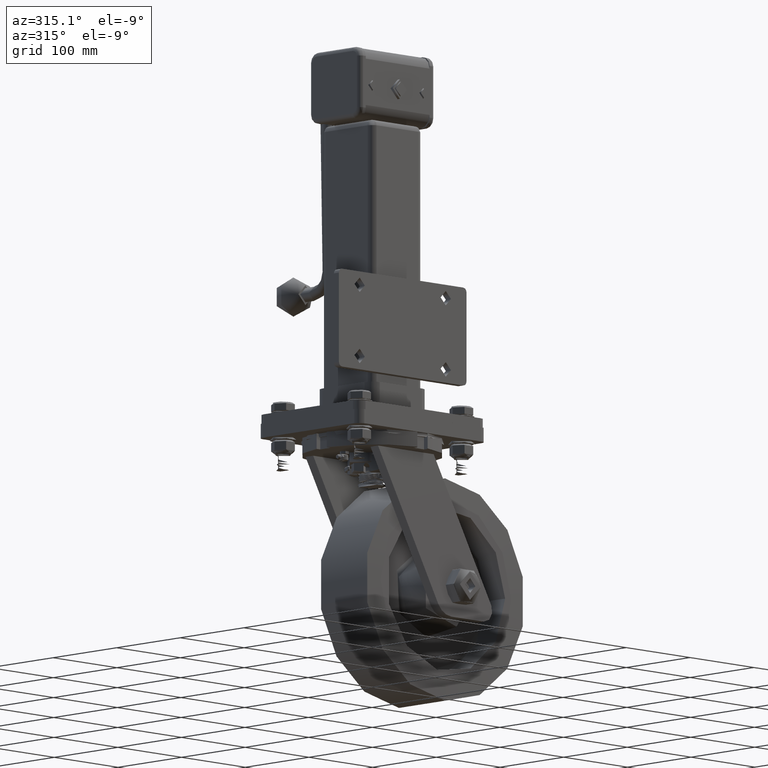
[diagram: clean part render]
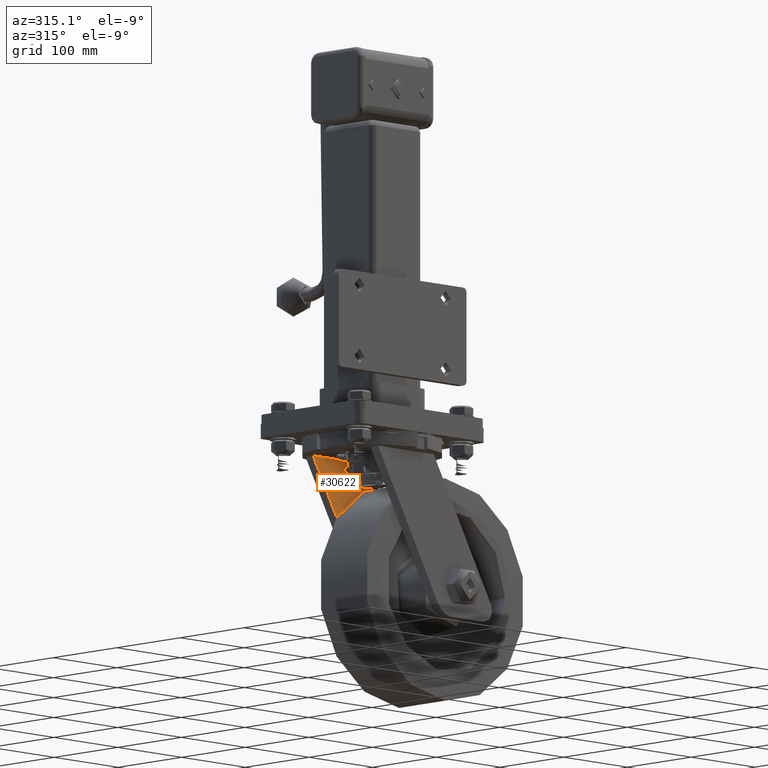
[diagram: same view with one face highlighted and labeled with its STEP entity id]
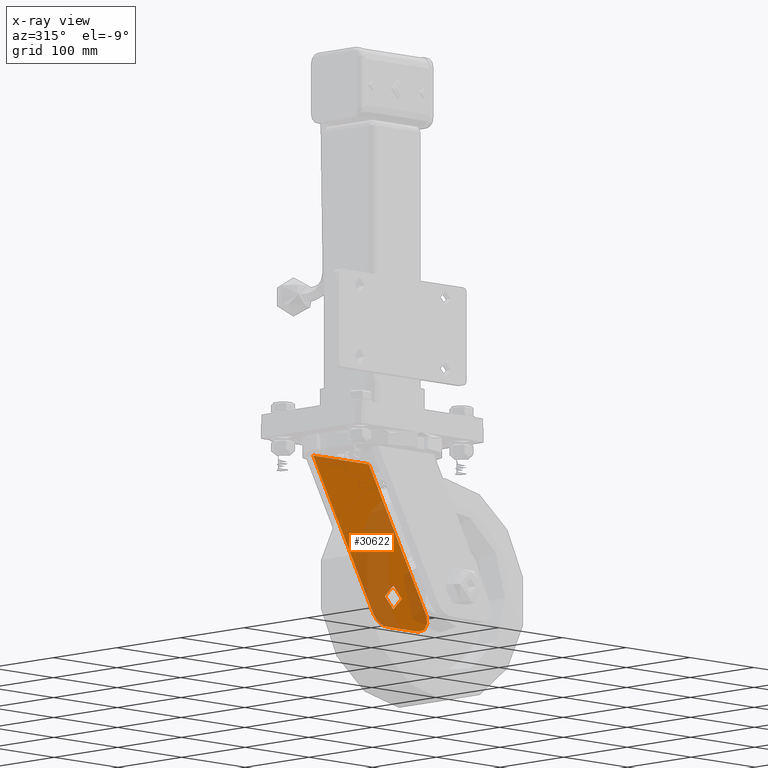
[diagram: x-ray of the same camera — body ghosted, the highlighted face saturated]
A machine part, auxiliary view. The second image highlights one B-rep face of the part: STEP entity #30622.
The next image is the same camera in x-ray: the body ghosted, the highlighted face saturated — about 44% of this face is hidden behind the body in this view.
In plain terms, the highlighted planar face has unit normal (0, 1, 0).
Its self-contained STEP definition (entity closure, byte-faithful):
#891=FACE_BOUND('',#5801,.T.);
#1143=PLANE('',#33333);
#2341=CIRCLE('',#33322,13.25);
#2343=CIRCLE('',#33326,13.25);
#2345=CIRCLE('',#33330,23.9999999999999);
#3871=FACE_OUTER_BOUND('',#5800,.T.);
#5800=EDGE_LOOP('',(#21526,#21527,#21528,#21529,#21530,#21531));
#5801=EDGE_LOOP('',(#21532));
#9269=LINE('',#57483,#11018);
#9273=LINE('',#57495,#11022);
#9277=LINE('',#57507,#11026);
#9280=LINE('',#57512,#11029);
#11018=VECTOR('',#37321,1000.);
#11022=VECTOR('',#37333,1000.);
#11026=VECTOR('',#37345,999.999999999999);
#11029=VECTOR('',#37352,1000.);
#12941=VERTEX_POINT('',#57473);
#12944=VERTEX_POINT('',#57480);
#12945=VERTEX_POINT('',#57482);
#12947=VERTEX_POINT('',#57488);
#12949=VERTEX_POINT('',#57494);
#12951=VERTEX_POINT('',#57500);
#12953=VERTEX_POINT('',#57506);
#16160=EDGE_CURVE('',#12941,#12941,#2341,.T.);
#16163=EDGE_CURVE('',#12944,#12945,#9269,.T.);
#16166=EDGE_CURVE('',#12947,#12945,#2343,.T.);
#16169=EDGE_CURVE('',#12949,#12947,#9273,.T.);
#16172=EDGE_CURVE('',#12949,#12951,#2345,.T.);
#16175=EDGE_CURVE('',#12953,#12951,#9277,.T.);
#16178=EDGE_CURVE('',#12953,#12944,#9280,.T.);
#21526=ORIENTED_EDGE('',*,*,#16178,.F.);
#21527=ORIENTED_EDGE('',*,*,#16175,.T.);
#21528=ORIENTED_EDGE('',*,*,#16172,.F.);
#21529=ORIENTED_EDGE('',*,*,#16169,.T.);
#21530=ORIENTED_EDGE('',*,*,#16166,.T.);
#21531=ORIENTED_EDGE('',*,*,#16163,.F.);
#21532=ORIENTED_EDGE('',*,*,#16160,.F.);
#30622=ADVANCED_FACE('',(#3871,#891),#1143,.F.);
#33322=AXIS2_PLACEMENT_3D('',#57475,#37315,#37316);
#33326=AXIS2_PLACEMENT_3D('',#57489,#37327,#37328);
#33330=AXIS2_PLACEMENT_3D('',#57501,#37339,#37340);
#33333=AXIS2_PLACEMENT_3D('',#57511,#37350,#37351);
#37315=DIRECTION('center_axis',(0.,-1.,0.));
#37316=DIRECTION('ref_axis',(-1.,0.,0.));
#37321=DIRECTION('',(0.490971754447699,0.,-0.871175491123659));
#37327=DIRECTION('center_axis',(0.,-1.,0.));
#37328=DIRECTION('ref_axis',(0.,0.,-1.));
#37333=DIRECTION('',(1.,0.,0.));
#37339=DIRECTION('center_axis',(0.,1.,0.));
#37340=DIRECTION('ref_axis',(0.,0.,-1.));
#37345=DIRECTION('',(0.490971754447698,0.,-0.871175491123659));
#37350=DIRECTION('center_axis',(0.,1.,0.));
#37351=DIRECTION('ref_axis',(0.,0.,1.));
#37352=DIRECTION('',(1.,0.,3.19029604777344E-16));
#57473=CARTESIAN_POINT('',(91.25,45.,-189.));
#57475=CARTESIAN_POINT('Origin',(78.,45.,-189.));
#57480=CARTESIAN_POINT('',(39.6192252734141,45.,-43.5000000000001));
#57482=CARTESIAN_POINT('',(129.647123478174,45.,-203.244624253568));
#57483=CARTESIAN_POINT('',(39.6192252734141,45.,-43.5000000000001));
#57488=CARTESIAN_POINT('',(118.104048220786,45.,-223.));
#57489=CARTESIAN_POINT('Origin',(118.104048220786,45.,-209.75));
#57494=CARTESIAN_POINT('',(67.56549794141,45.,-223.));
#57495=CARTESIAN_POINT('',(67.56549794141,45.,-223.));
#57500=CARTESIAN_POINT('',(46.6572861544422,45.,-210.783322106745));
#57501=CARTESIAN_POINT('Origin',(67.56549794141,45.,-199.));
#57506=CARTESIAN_POINT('',(-47.619225273414,45.,-43.5));
#57507=CARTESIAN_POINT('',(-47.619225273414,45.,-43.5));
#57511=CARTESIAN_POINT('Origin',(46.5807560137458,45.,-133.25));
#57512=CARTESIAN_POINT('',(-5.58462199312713,45.,-43.5000000000001));